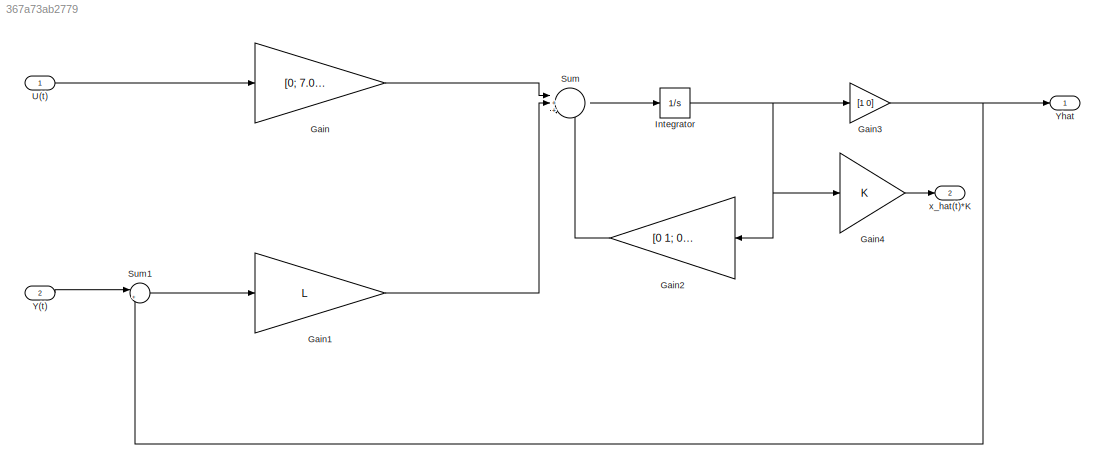
MODEL slx_367a73ab2779
KIND model
CONFIG AbsTol = auto
CONFIG EnableMultiTasking = off
CONFIG FixedStep = auto
CONFIG MaxStep = auto
CONFIG MinStep = auto
CONFIG RelTol = 1e-3
CONFIG SampleTimeConstraint = Unconstrained
CONFIG SolverName = ode8
CONFIG StartTime = 0.0
CONFIG StopTime = 10.0
WORKSPACE source: mxarray member
WORKSPACE A: Simulink.Parameter (value not decoded)
WORKSPACE B: Simulink.Parameter (value not decoded)
WORKSPACE C: Simulink.Parameter (value not decoded)
WORKSPACE K: Simulink.Parameter (value not decoded)
WORKSPACE L: Simulink.Parameter (value not decoded)
BLOCK [Gain] Gain
  Gain = [0; 7.007]
  Multiplication = Matrix(K*u) (u vector)
BLOCK [Gain] Gain1
  Gain = L
  Multiplication = Matrix(K*u) (u vector)
BLOCK [Gain] Gain2
  Gain = [0 1; 0 0]
  Multiplication = Matrix(K*u) (u vector)
BLOCK [Gain] Gain3
  Gain = [1 0]
  Multiplication = Matrix(K*u)
BLOCK [Gain] Gain4
  Gain = K
  Multiplication = Matrix(K*u) (u vector)
BLOCK [Integrator] Integrator
  Ports = [1, 1]
BLOCK [Sum] Sum
  Inputs = |+++
  Ports = [3, 1]
BLOCK [Sum] Sum1
  Inputs = |+-
  Ports = [2, 1]
BLOCK [Inport] U(t)
BLOCK [Inport] Y(t)
  Port = 2
BLOCK [Outport] Yhat
BLOCK [Outport] x_hat(t)*K
  Port = 2
  VectorParamsAs1DForOutWhenUnconnected = off
LINE Gain1:1 -> Sum:2
LINE Gain2:1 -> Sum:3
NET Gain3:1 -> Sum1:2, Yhat:1
LINE Gain4:1 -> x_hat(t)*K:1
LINE Gain:1 -> Sum:1
NET Integrator:1 -> Gain2:1, Gain3:1, Gain4:1
LINE Sum1:1 -> Gain1:1
LINE Sum:1 -> Integrator:1
LINE U(t):1 -> Gain:1
LINE Y(t):1 -> Sum1:1
note: NET lines group one-source signal fan-out (src -> all destinations, sorted); 1:1 wires keep LINE
